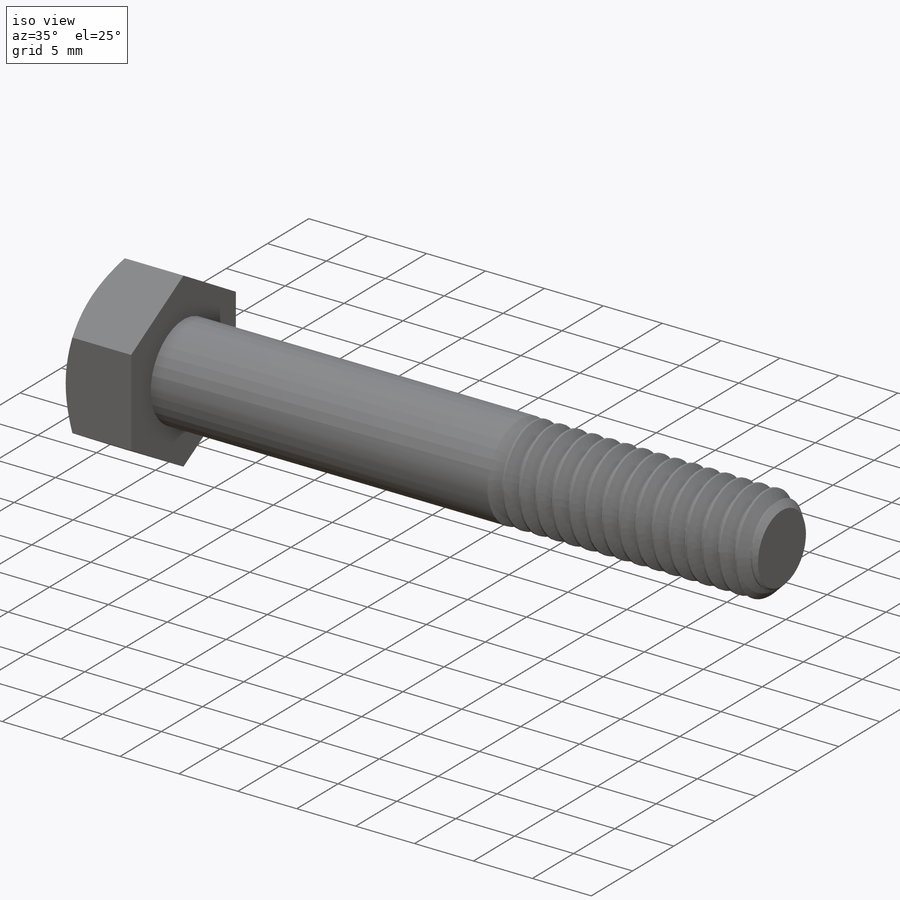
[diagram: iso view]
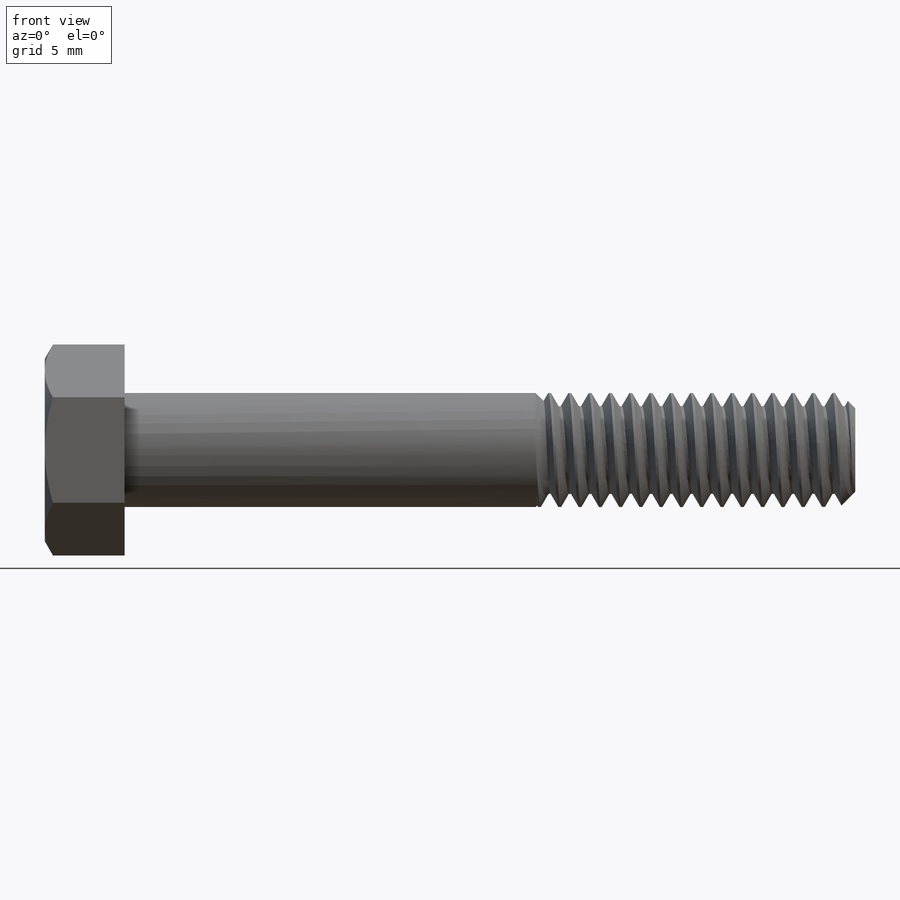
[diagram: front view]
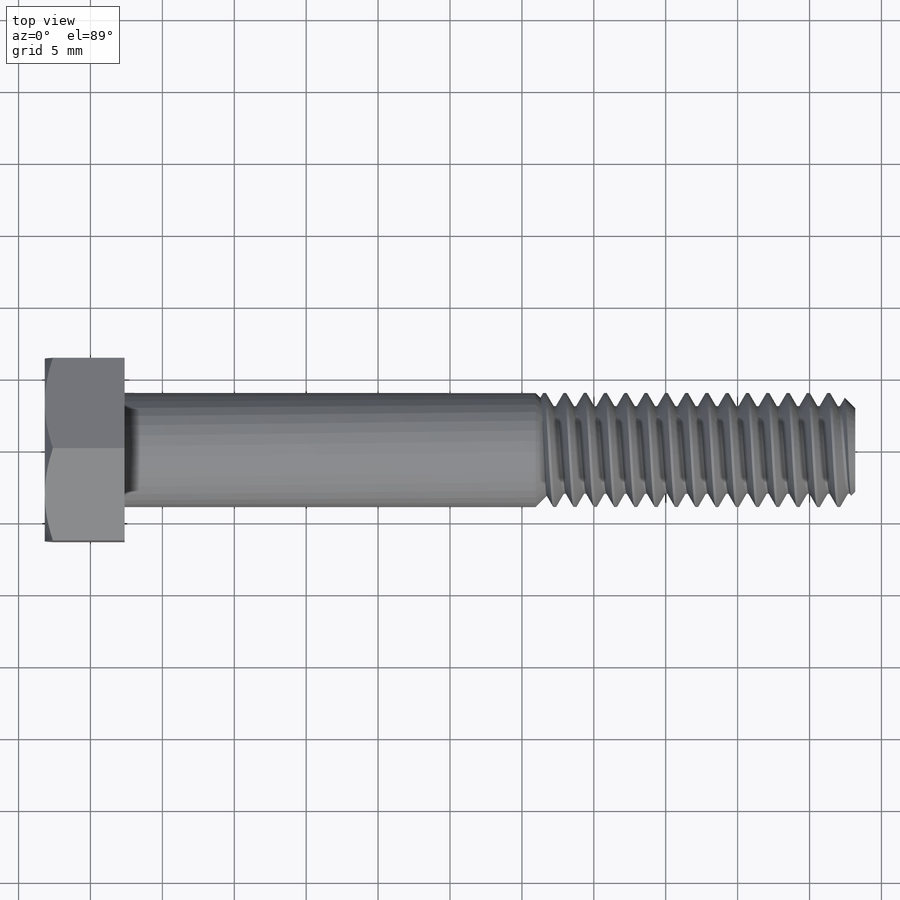
[diagram: top view]
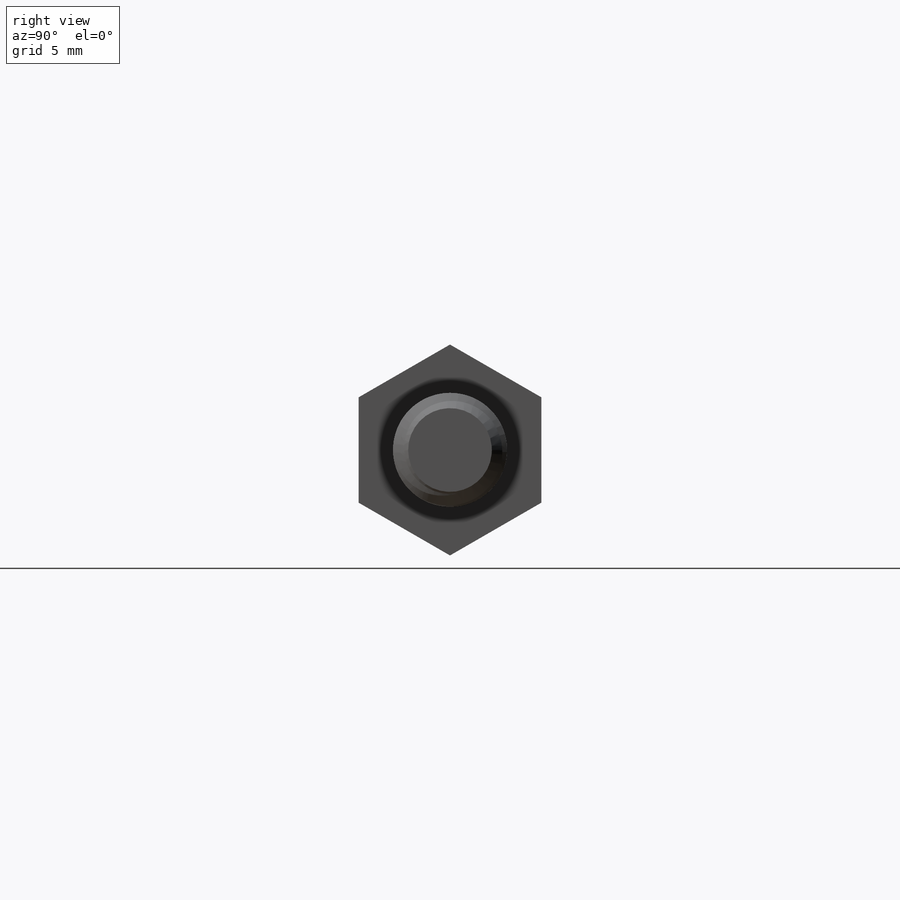
[diagram: right view]
SOLIDWORKS PART (.sldprt)
format: sldprt  version: not decoded by parser v0  size: 760,832 bytes
history: native  units: mm
features: sketch x8, extrude x2, material x1, plane x1, helix x1, chamfer x1, sweep x1, revolve x1, cut_extrude x1 (+13 scaffold rows collapsed)
feature tree (30):
  scaffold x13  (default folders/planes/origin — collapsed)
  material  "Material <not specified>"
  sketch  "Sketch1"  dims[Screw Dia=7.9375mm Hex=12.7mm Head Ht=~5.55625mm Screw Lenght=50.8mm D1=~4.938889mm]
  plane  "Plane2"
  sketch  "Sketch5"  dims[D1=15.875mm]
  extrude  "Boss-Extrude3"  [1 undecoded]
  sketch  "Sketch9"  dims[D1=0.0mm]
  helix  "Helix/Spiral1"  Pitch=23.636111mm
  chamfer  "Chamfer1"  Distance=1.058333mm Angle=45deg
  sketch  "Sketch10"  dims[c1.D1=~2.023846mm c2.D1=60.0deg c2.D2=~0.176389mm c2.D3=~0.705556mm]
  sweep  "Cut-Sweep1"
  sketch  "Sketch11"  dims[c1.D1=~36.480947mm c2.D1=45.0deg c2.MIn Thread=22.225mm]
  revolve  "Revolve1"  Angle=360deg
  sketch  "Sketch6"
  extrude  "Boss-Extrude4"  [1 undecoded]
  sketch  "Sketch7"
  sketch  "Sketch8"
  cut_extrude  "Cut-Extrude3"  [1 undecoded]
decode coverage: 8 of 15 modeling features carry decoded parameters
note: ~ marks probable driven/reference dimensions
note: 3 parameter values undecoded
summary: no parameter record found for 3 features
note: suppression state not decoded; provenance and decode notes live in map.json
